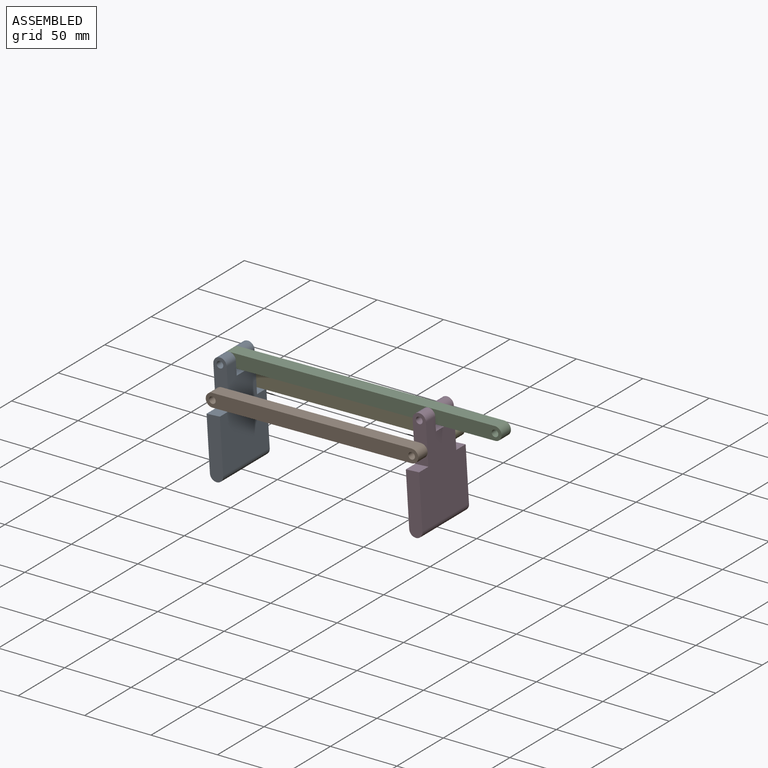
[diagram: assembled view]
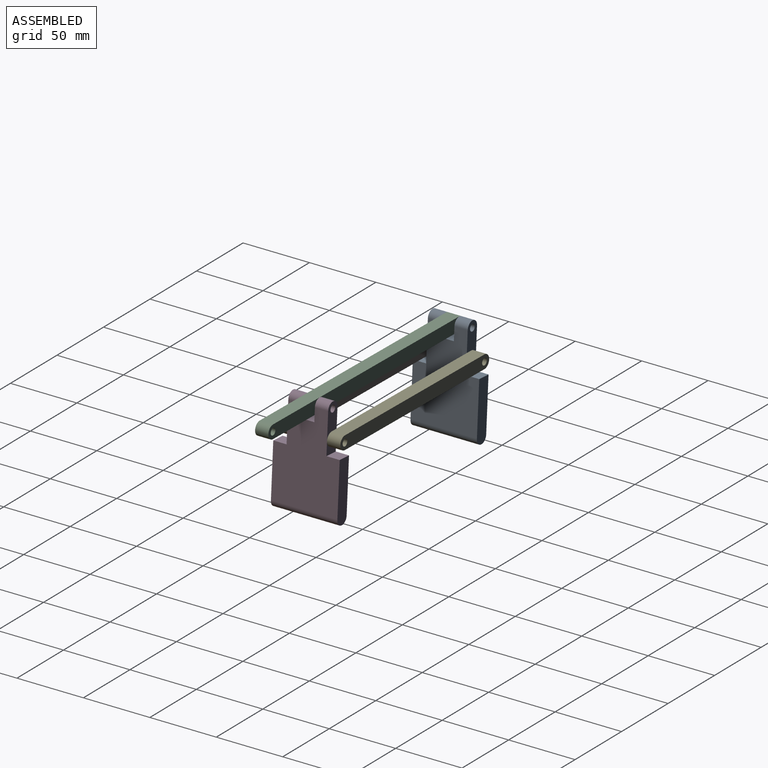
[diagram: assembled view, second angle]
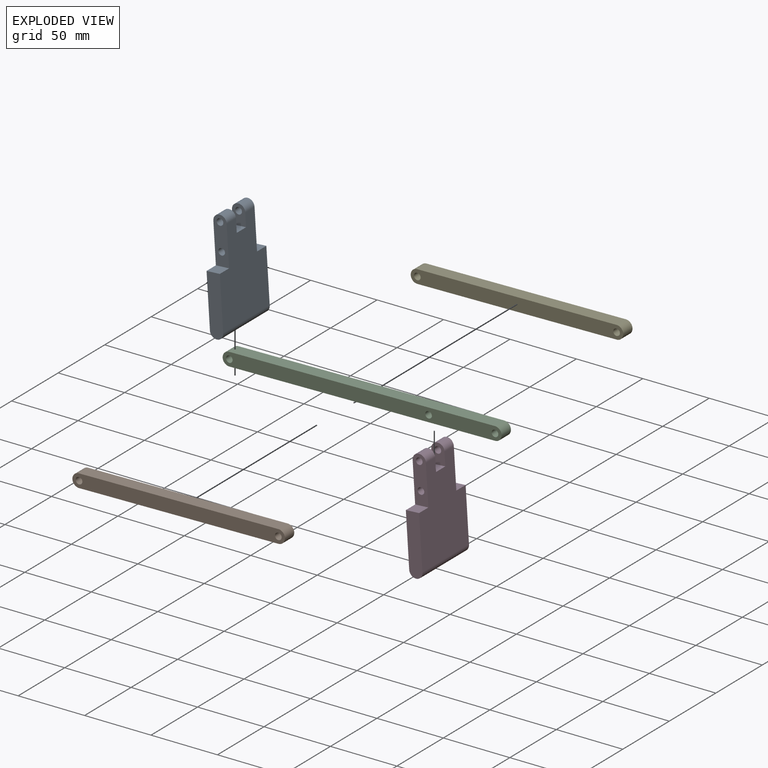
[diagram: exploded view]
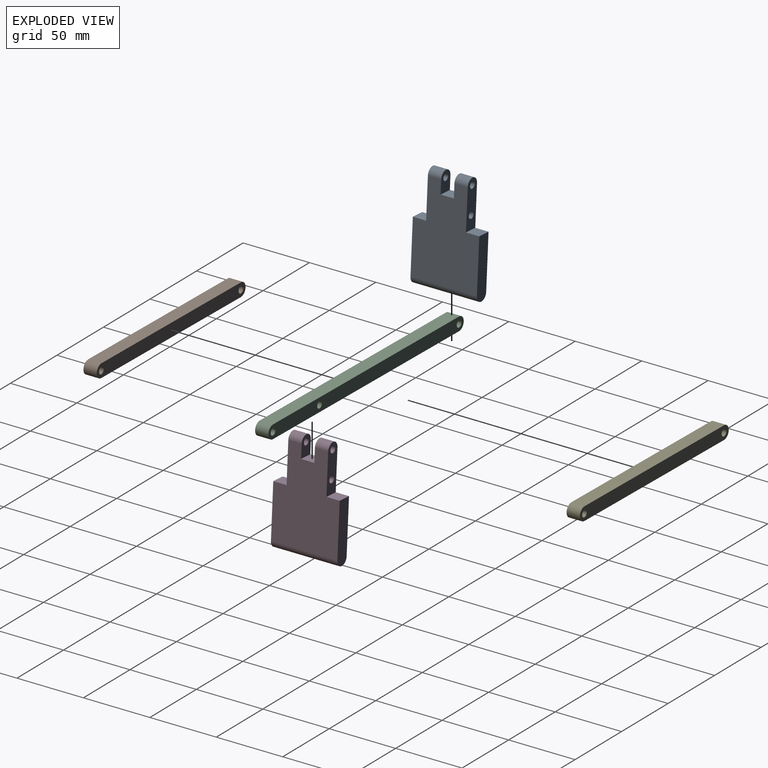
[diagram: exploded view, second angle]
ASSEMBLY  parts=5 mates=7
PART A: 17 faces, bbox 80x50x10 mm
  f0: plane 70x50mm, normal (0,0,1), area 2800mm2, adj f2,f3,f4,f5,f6,f7,f8,f9
  f1: plane 70x50mm, normal (0,0,-1), area 2800mm2, adj f2,f3,f4,f5,f6,f7,f8,f9
  f2: cylinder r=5mm len=10mm, axis (0,1,0), area 157.1mm2, adj f0,f1,f9,f11
  f3: cylinder r=5mm len=10mm, axis (0,1,0), area 157.1mm2, adj f0,f1,f8,f13
  f4: plane 45x10mm, normal (0,-1,0), area 439.3mm2, adj f0,f1,f6,f10
  f5: plane 45x10mm, normal (0,1,0), area 439.3mm2, adj f0,f1,f6,f12
  f6: cylinder r=5mm len=50mm, axis (0,1,0), area 785.4mm2, adj f0,f1,f4,f5
  f7: plane 10x10mm, normal (1,0,0), area 100mm2, adj f0,f1,f8,f9
  f8: plane 15x10mm, normal (0,-1,0), area 119.6mm2, adj f0,f1,f3,f7,f16
  f9: plane 15x10mm, normal (0,1,0), area 119.6mm2, adj f0,f1,f2,f7,f15
  f10: plane 10x10mm, normal (1,0,0), area 100mm2, adj f0,f1,f4,f11
  f11: plane 35x10mm, normal (0,-1,0), area 300mm2, adj f0,f1,f2,f10,f14,f15
  f12: plane 10x10mm, normal (1,0,0), area 100mm2, adj f0,f1,f5,f13
  f13: plane 35x10mm, normal (0,1,0), area 300mm2, adj f0,f1,f3,f12,f14,f16
  f14: cylinder r=2.5mm len=30mm, axis (0,1,0), area 471.2mm2, adj f11,f13
  f15: cylinder r=2.5mm len=10mm, axis (0,1,0), area 157.1mm2, adj f9,f11
  f16: cylinder r=2.5mm len=10mm, axis (0,1,0), area 157.1mm2, adj f8,f13
PART B: 8 faces, bbox 160x10x10 mm
  f0: plane 150x10mm, normal (0,0,1), area 1500mm2, adj f1,f5,f6,f7
  f1: cylinder r=5mm len=10mm, axis (0,1,0), area 157.1mm2, adj f0,f2,f6,f7
  f2: plane 150x10mm, normal (0,0,-1), area 1500mm2, adj f1,f5,f6,f7
  f3: cylinder r=2.5mm len=10mm, axis (0,1,0), area 157.1mm2, adj f6,f7
  f4: cylinder r=2.5mm len=10mm, axis (0,1,0), area 157.1mm2, adj f6,f7
  f5: cylinder r=5mm len=10mm, axis (0,1,0), area 157.1mm2, adj f0,f2,f6,f7
  f6: plane 160x10mm, normal (0,-1,0), area 1539.3mm2, adj f0,f1,f2,f3,f4,f5
  f7: plane 160x10mm, normal (0,1,0), area 1539.3mm2, adj f0,f1,f2,f3,f4,f5
PART C: 9 faces, bbox 210x10x10 mm
  f0: plane 200x10mm, normal (0,0,1), area 2000mm2, adj f1,f6,f7,f8
  f1: cylinder r=5mm len=10mm, axis (0,1,0), area 157.1mm2, adj f0,f2,f7,f8
  f2: plane 200x10mm, normal (0,0,-1), area 2000mm2, adj f1,f6,f7,f8
  f3: cylinder r=2.5mm len=10mm, axis (0,1,0), area 157.1mm2, adj f7,f8
  f4: cylinder r=2.5mm len=10mm, axis (0,1,0), area 157.1mm2, adj f7,f8
  f5: cylinder r=2.5mm len=10mm, axis (0,1,0), area 157.1mm2, adj f7,f8
  f6: cylinder r=5mm len=10mm, axis (0,1,0), area 157.1mm2, adj f0,f2,f7,f8
  f7: plane 210x10mm, normal (0,-1,0), area 2019.6mm2, adj f0,f1,f2,f3,f4,f5,f6
  f8: plane 210x10mm, normal (0,1,0), area 2019.6mm2, adj f0,f1,f2,f3,f4,f5,f6
PART D: same geometry as A
PART E: same geometry as B
PLACE A rot(axis=(0,-1,0),93.6deg) t=(-145.13,-0.44,11.93)mm
PLACE B rot(axis=(1,0,0.01),180deg) t=(-71.08,-20.44,28.02)mm
PLACE C rot(axis=(0,-1,0),0.9deg) t=(-72.35,-0.44,47.98)mm
PLACE D rot(axis=(0,-1,0),93.6deg) t=(4.86,-0.44,14.16)mm fixed
PLACE E rot(axis=(0,-1,0),0.9deg) t=(-71.08,19.56,28.02)mm
MATE cylindrical B.f3 <-> A.f14  axis (0,-1,0) through (-146.08,-25.44,26.9)mm
MATE cylindrical C.f4 <-> D.f15  axis (0,-1,0) through (2.64,-5.44,49.09)mm
MATE cylindrical E.f3 <-> A.f14  axis (0,1,0) through (-146.08,24.56,26.9)mm
MATE planar B.f6 <-> A.f11  axis (0,1,0) through (-146.15,-15.44,31.9)mm
MATE cylindrical B.f5 <-> D.f14  axis (0,-1,0) through (3.91,-25.44,29.13)mm
MATE revolute C.f3 <-> A.f15  axis (0,-1,0) through (-147.34,-5.44,46.86)mm
MATE revolute D.f14 <-> E.f5  axis (0,1,0) through (3.91,14.56,29.13)mm
